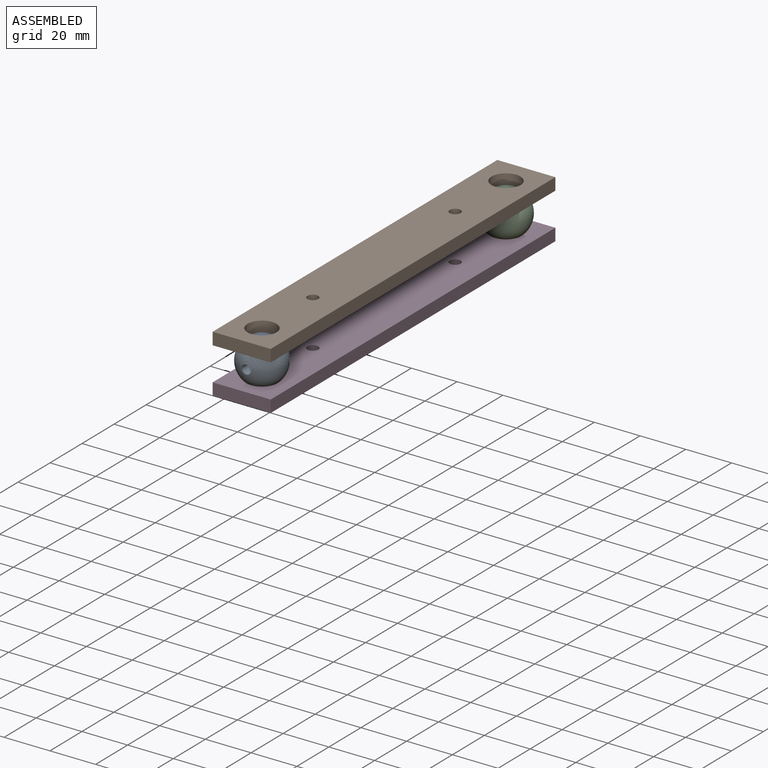
[diagram: assembled view]
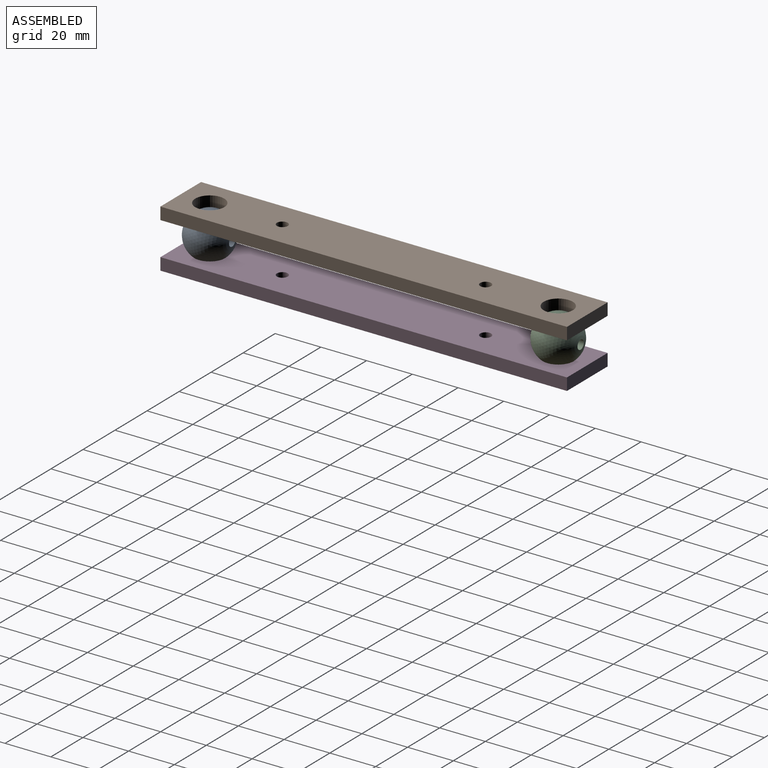
[diagram: assembled view, second angle]
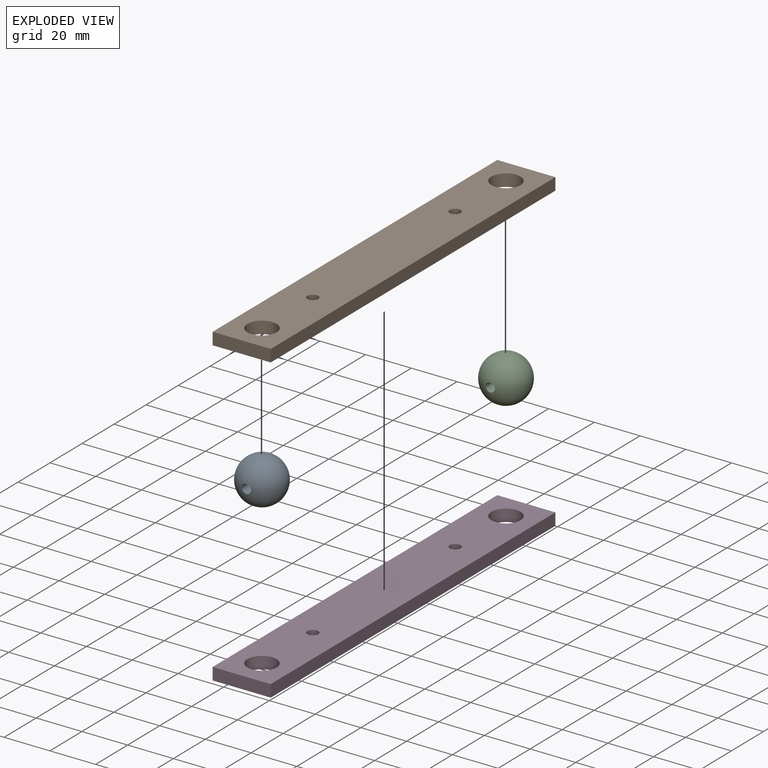
[diagram: exploded view]
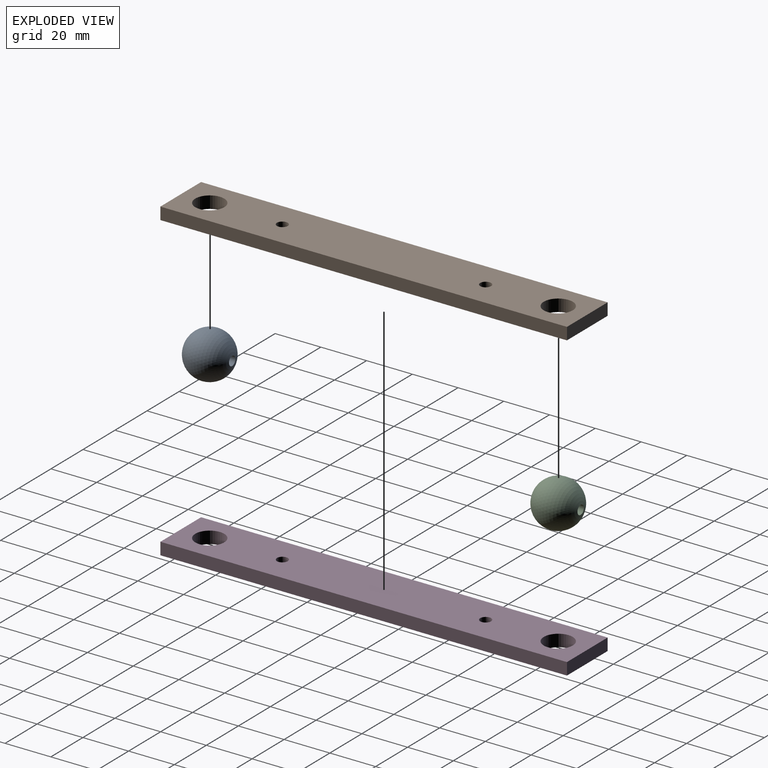
[diagram: exploded view, second angle]
ASSEMBLY  parts=4 mates=4
PART A: 2 faces, bbox 20x19.6x20 mm
  f0: cylinder r=1.99mm len=19.59mm, axis (0,1,0), area 245.4mm2, adj f1
  f1: sphere r=9.99mm, area 1230.1mm2, adj f0
PART B: 10 faces, bbox 25.4x177.8x5.3 mm
  f0: plane 177.8x5.33mm, normal (-1,0,0), area 948.4mm2, adj f1,f7,f8,f9
  f1: plane 25.4x5.33mm, normal (0,-1,0), area 135.5mm2, adj f0,f2,f8,f9
  f2: plane 177.8x5.33mm, normal (1,0,0), area 948.4mm2, adj f1,f7,f8,f9
  f3: cylinder r=6.35mm len=12.7mm, axis (0,0,-1), area 212.8mm2, adj f8,f9
  f4: cylinder r=6.35mm len=12.7mm, axis (0,0,-1), area 212.8mm2, adj f8,f9
  f5: cylinder r=2.38mm len=5.33mm, axis (0,0,-1), area 79.8mm2, adj f8,f9
  f6: cylinder r=2.38mm len=5.33mm, axis (0,0,-1), area 79.8mm2, adj f8,f9
  f7: plane 25.4x5.33mm, normal (0,1,0), area 135.5mm2, adj f0,f2,f8,f9
  f8: plane 177.8x25.4mm, normal (0,0,1), area 4227.1mm2, adj f0,f1,f2,f3,f4,f5,f6,f7
  f9: plane 177.8x25.4mm, normal (0,0,-1), area 4227.1mm2, adj f0,f1,f2,f3,f4,f5,f6,f7
PART C: same geometry as A
PART D: same geometry as B
PLACE A t=(109.61,-69.79,-31.14)mm
PLACE B t=(198.51,188.84,-23.81)mm
PLACE C t=(109.61,82.61,-31.14)mm
PLACE D t=(198.51,188.84,-43.8)mm
MATE ball A.f1 <-> B.f3  axis (0,0,1) through (109.61,-69.79,-21.14)mm
MATE ball A.f1 <-> D.f3  axis (0,0,-1) through (109.61,-69.79,-41.13)mm
MATE ball C.f1 <-> D.f4  axis (0,0,-1) through (109.61,82.61,-41.13)mm
MATE ball C.f1 <-> B.f4  axis (0,0,1) through (109.61,82.61,-21.14)mm
